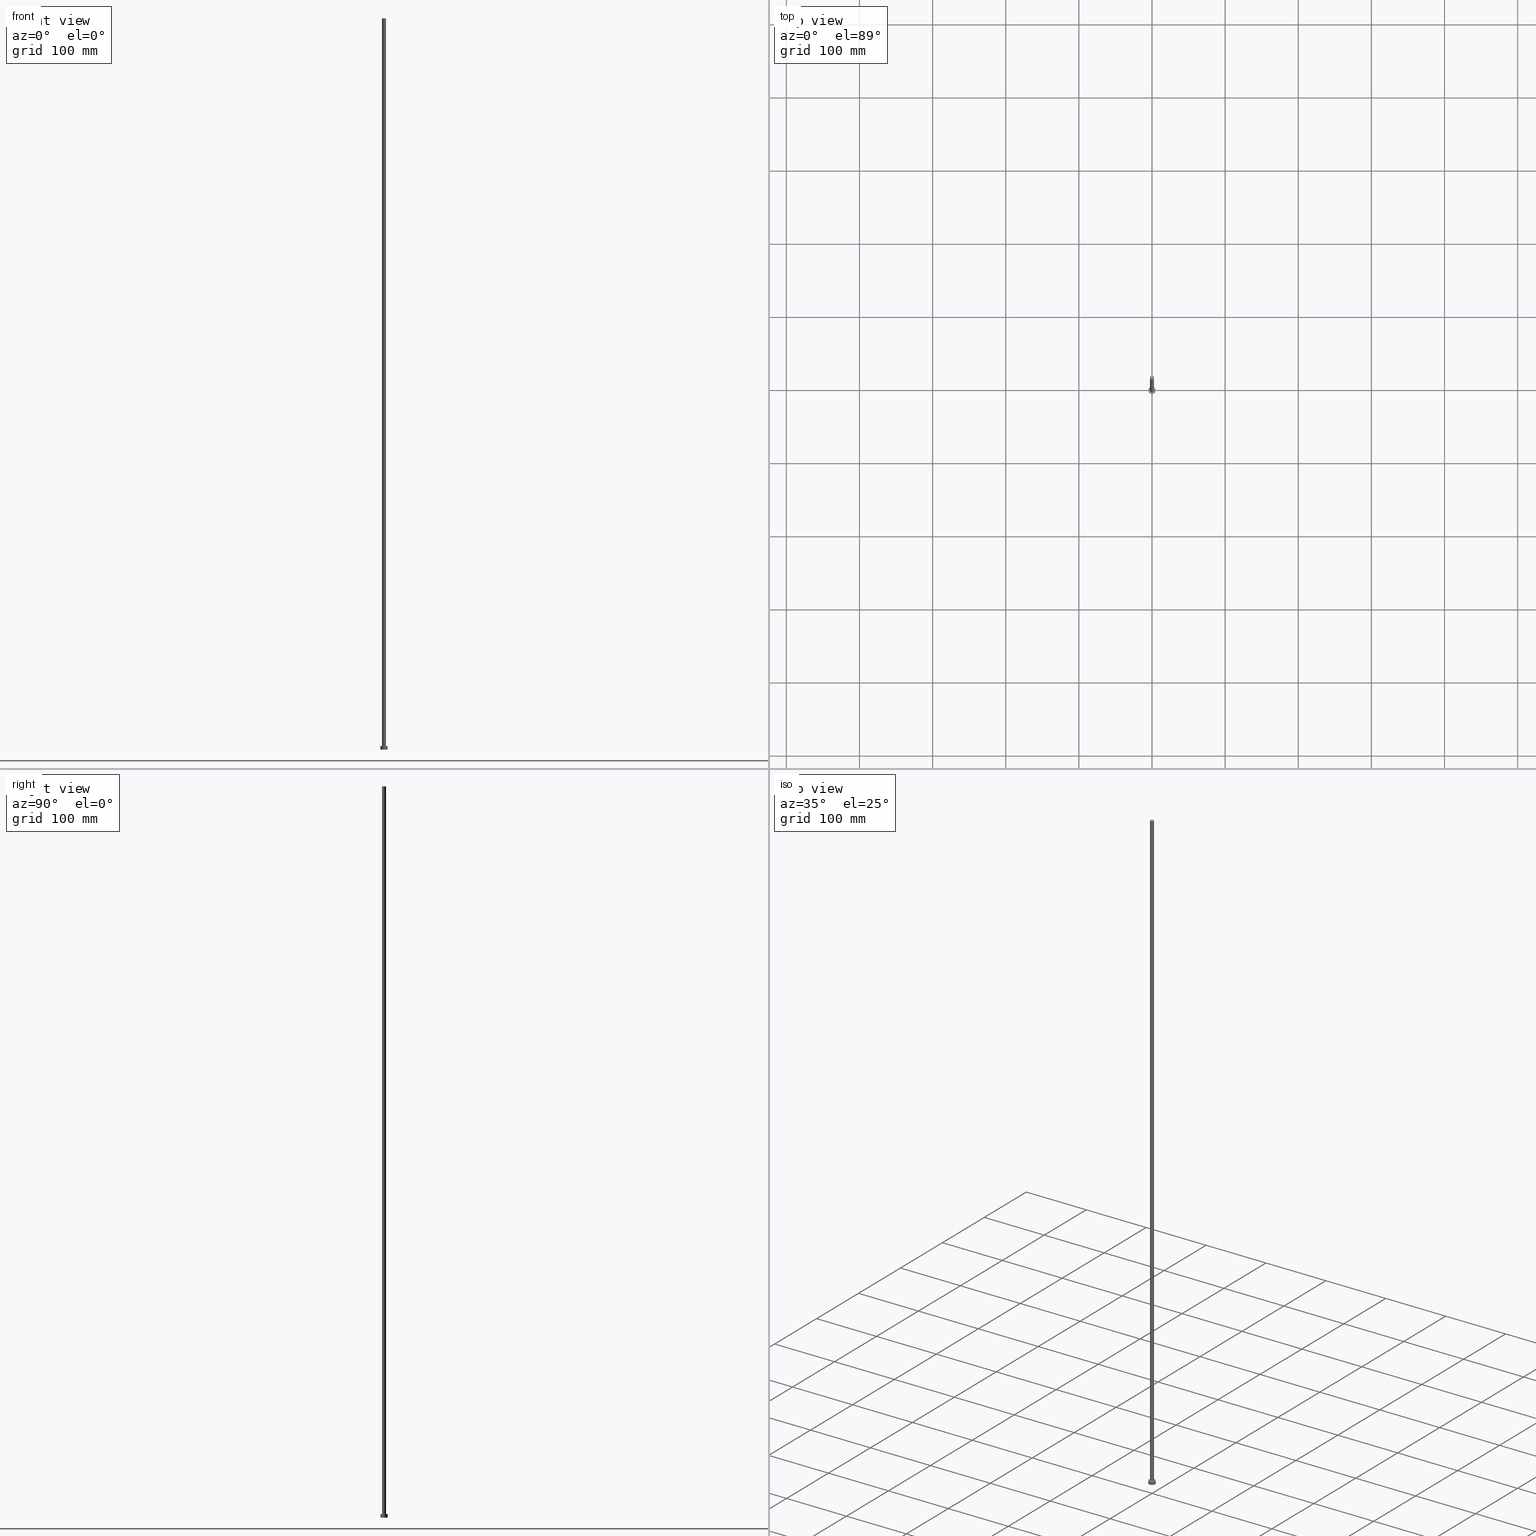
[diagram: canonical four-view strip — front | top / right | iso, engineering-drawing reading convention]
A machine part, canonical four-view strip (front | top / right | iso — engineering-drawing reading convention). The complete STEP part file that produces these views, byte-faithful:
ISO-10303-21;
HEADER;
FILE_DESCRIPTION (( 'STEP AP203' ),
    '1' );
FILE_NAME ('f2f4.STEP',
    '2023-02-13T15:46:04',
    ( '' ),
    ( '' ),
    'SwSTEP 2.0',
    'SolidWorks 2019',
    '' );
FILE_SCHEMA (( 'CONFIG_CONTROL_DESIGN' ));
ENDSEC;

DATA;
#1 = ORIENTED_EDGE ( 'NONE', *, *, #202, .F. ) ;
#2 = FACE_OUTER_BOUND ( 'NONE', #23, .T. ) ;
#3 = AXIS2_PLACEMENT_3D ( 'NONE', #111, #194, #216 ) ;
#4 = CC_DESIGN_PERSON_AND_ORGANIZATION_ASSIGNMENT ( #94, #206, ( #47 ) ) ;
#5 = VERTEX_POINT ( 'NONE', #255 ) ;
#6 = PLANE ( 'NONE',  #195 ) ;
#7 = ORIENTED_EDGE ( 'NONE', *, *, #248, .F. ) ;
#8 = CALENDAR_DATE ( 2023, 13, 2 ) ;
#9 = VECTOR ( 'NONE', #139, 1000.000000000000000 ) ;
#10 =( LENGTH_UNIT ( ) NAMED_UNIT ( * ) SI_UNIT ( .MILLI., .METRE. ) );
#11 = ORIENTED_EDGE ( 'NONE', *, *, #248, .T. ) ;
#12 = DIRECTION ( 'NONE',  ( 1.000000000000000000, 0.000000000000000000, 0.000000000000000000 ) ) ;
#13 = ORIENTED_EDGE ( 'NONE', *, *, #87, .F. ) ;
#14 = DATE_AND_TIME ( #124, #182 ) ;
#15 = ORIENTED_EDGE ( 'NONE', *, *, #162, .T. ) ;
#16 = CIRCLE ( 'NONE', #43, 5.000000000000000000 ) ;
#17 = CARTESIAN_POINT ( 'NONE',  ( 0.000000000000000000, 0.000000000000000000, 1000.000000000000000 ) ) ;
#18 = DIRECTION ( 'NONE',  ( 0.000000000000000000, 0.000000000000000000, 1.000000000000000000 ) ) ;
#19 = DIRECTION ( 'NONE',  ( 1.000000000000000000, 0.000000000000000000, 0.000000000000000000 ) ) ;
#20 = PERSON_AND_ORGANIZATION_ROLE ( 'classification_officer' ) ;
#21 = ADVANCED_FACE ( 'NONE', ( #155 ), #252, .T. ) ;
#22 = CC_DESIGN_APPROVAL ( #121, ( #104 ) ) ;
#23 = EDGE_LOOP ( 'NONE', ( #209, #49, #99, #13 ) ) ;
#24 = CARTESIAN_POINT ( 'NONE',  ( 0.000000000000000000, 0.000000000000000000, 5.000000000000000000 ) ) ;
#25 = PRODUCT_RELATED_PRODUCT_CATEGORY ( 'detail', '', ( #241 ) ) ;
#26 = CC_DESIGN_PERSON_AND_ORGANIZATION_ASSIGNMENT ( #75, #158, ( #104 ) ) ;
#27 = UNCERTAINTY_MEASURE_WITH_UNIT (LENGTH_MEASURE( 1.000000000000000082E-05 ), #10, 'distance_accuracy_value', 'NONE');
#28 = CIRCLE ( 'NONE', #220, 2.750000000000000000 ) ;
#29 = APPROVAL_DATE_TIME ( #14, #183 ) ;
#30 = FACE_OUTER_BOUND ( 'NONE', #207, .T. ) ;
#31 = CYLINDRICAL_SURFACE ( 'NONE', #203, 5.000000000000000000 ) ;
#32 = EDGE_LOOP ( 'NONE', ( #185, #93, #57, #251 ) ) ;
#33 = AXIS2_PLACEMENT_3D ( 'NONE', #148, #186, #50 ) ;
#34 = PERSON_AND_ORGANIZATION_ROLE ( 'design_owner' ) ;
#35 = ORIENTED_EDGE ( 'NONE', *, *, #133, .T. ) ;
#36 = APPLICATION_CONTEXT ( 'configuration controlled 3d designs of mechanical parts and assemblies' ) ;
#37 = AXIS2_PLACEMENT_3D ( 'NONE', #17, #237, #61 ) ;
#38 = CARTESIAN_POINT ( 'NONE',  ( 2.750000000000000000, 3.367778697655220519E-16, 1000.000000000000000 ) ) ;
#39 = LINE ( 'NONE', #238, #9 ) ;
#40 = ORIENTED_EDGE ( 'NONE', *, *, #62, .T. ) ;
#41 = DIRECTION ( 'NONE',  ( 1.000000000000000000, 0.000000000000000000, 0.000000000000000000 ) ) ;
#42 = COORDINATED_UNIVERSAL_TIME_OFFSET ( 1, 0, .AHEAD. ) ;
#43 = AXIS2_PLACEMENT_3D ( 'NONE', #24, #102, #84 ) ;
#44 = EDGE_CURVE ( 'NONE', #80, #5, #143, .T. ) ;
#45 = FACE_BOUND ( 'NONE', #196, .T. ) ;
#46 = AXIS2_PLACEMENT_3D ( 'NONE', #134, #236, #179 ) ;
#47 = PRODUCT_DEFINITION ( 'NEZN�M�', '', #104, #123 ) ;
#48 = LOCAL_TIME ( 16, 46, 4.000000000000000000, #42 ) ;
#49 = ORIENTED_EDGE ( 'NONE', *, *, #229, .T. ) ;
#50 = DIRECTION ( 'NONE',  ( 1.000000000000000000, 0.000000000000000000, 0.000000000000000000 ) ) ;
#51 = APPROVAL_ROLE ( '' ) ;
#52 = CC_DESIGN_SECURITY_CLASSIFICATION ( #254, ( #104 ) ) ;
#53 = MECHANICAL_CONTEXT ( 'NONE', #204, 'mechanical' ) ;
#54 = ADVANCED_FACE ( 'NONE', ( #97 ), #114, .T. ) ;
#55 = CARTESIAN_POINT ( 'NONE',  ( 0.000000000000000000, 0.000000000000000000, 0.000000000000000000 ) ) ;
#56 = AXIS2_PLACEMENT_3D ( 'NONE', #59, #18, #117 ) ;
#57 = ORIENTED_EDGE ( 'NONE', *, *, #103, .T. ) ;
#58 = APPROVAL_PERSON_ORGANIZATION ( #108, #183, #193 ) ;
#59 = CARTESIAN_POINT ( 'NONE',  ( 0.000000000000000000, 0.000000000000000000, 5.000000000000000000 ) ) ;
#60 = PERSON_AND_ORGANIZATION ( #69, #224 ) ;
#61 = DIRECTION ( 'NONE',  ( -1.000000000000000000, 0.000000000000000000, 0.000000000000000000 ) ) ;
#62 = EDGE_CURVE ( 'NONE', #246, #101, #164, .T. ) ;
#63 = EDGE_LOOP ( 'NONE', ( #145, #126 ) ) ;
#64 = AXIS2_PLACEMENT_3D ( 'NONE', #165, #70, #210 ) ;
#65 = CYLINDRICAL_SURFACE ( 'NONE', #153, 5.000000000000000000 ) ;
#66 = AXIS2_PLACEMENT_3D ( 'NONE', #55, #130, #154 ) ;
#67 = EDGE_CURVE ( 'NONE', #230, #109, #234, .T. ) ;
#68 = PRODUCT_DEFINITION_SHAPE ( 'NONE', 'NONE',  #47 ) ;
#69 = PERSON ( 'NEUR�EN�', 'NEUR�EN�', 'NEUR�EN�', ('NEUR�EN�'), ('NEUR�EN�'), ('NEUR�EN�') ) ;
#70 = DIRECTION ( 'NONE',  ( 0.000000000000000000, 0.000000000000000000, 1.000000000000000000 ) ) ;
#71 = PERSON_AND_ORGANIZATION ( #69, #224 ) ;
#72 = EDGE_LOOP ( 'NONE', ( #15, #190 ) ) ;
#73 =( NAMED_UNIT ( * ) PLANE_ANGLE_UNIT ( ) SI_UNIT ( $, .RADIAN. ) );
#74 = DIRECTION ( 'NONE',  ( -0.000000000000000000, -0.000000000000000000, -1.000000000000000000 ) ) ;
#75 = PERSON_AND_ORGANIZATION ( #69, #224 ) ;
#76 = CARTESIAN_POINT ( 'NONE',  ( -5.000000000000000000, 0.000000000000000000, 5.000000000000000000 ) ) ;
#77 = DATE_AND_TIME ( #215, #48 ) ;
#78 = EDGE_LOOP ( 'NONE', ( #212, #151, #11, #113 ) ) ;
#79 = SHAPE_DEFINITION_REPRESENTATION ( #68, #163 ) ;
#80 = VERTEX_POINT ( 'NONE', #157 ) ;
#81 = APPROVAL_DATE_TIME ( #174, #121 ) ;
#82 = DIRECTION ( 'NONE',  ( 0.000000000000000000, 0.000000000000000000, 1.000000000000000000 ) ) ;
#83 = COORDINATED_UNIVERSAL_TIME_OFFSET ( 1, 0, .AHEAD. ) ;
#84 = DIRECTION ( 'NONE',  ( 1.000000000000000000, 0.000000000000000000, 0.000000000000000000 ) ) ;
#85 = CIRCLE ( 'NONE', #170, 2.750000000000000000 ) ;
#86 = CC_DESIGN_APPROVAL ( #183, ( #47 ) ) ;
#87 = EDGE_CURVE ( 'NONE', #101, #109, #39, .T. ) ;
#88 = ORIENTED_EDGE ( 'NONE', *, *, #44, .F. ) ;
#89 = DATE_TIME_ROLE ( 'creation_date' ) ;
#90 = ADVANCED_FACE ( 'NONE', ( #219 ), #172, .T. ) ;
#91 = VERTEX_POINT ( 'NONE', #96 ) ;
#92 = DIRECTION ( 'NONE',  ( 0.000000000000000000, 0.000000000000000000, 1.000000000000000000 ) ) ;
#93 = ORIENTED_EDGE ( 'NONE', *, *, #162, .F. ) ;
#94 = PERSON_AND_ORGANIZATION ( #69, #224 ) ;
#95 = AXIS2_PLACEMENT_3D ( 'NONE', #244, #247, #12 ) ;
#96 = CARTESIAN_POINT ( 'NONE',  ( 2.750000000000000000, 3.367778697655220519E-16, 1000.000000000000000 ) ) ;
#97 = FACE_OUTER_BOUND ( 'NONE', #72, .T. ) ;
#98 = DIRECTION ( 'NONE',  ( 0.000000000000000000, 0.000000000000000000, 1.000000000000000000 ) ) ;
#99 = ORIENTED_EDGE ( 'NONE', *, *, #67, .T. ) ;
#100 = DATE_AND_TIME ( #152, #140 ) ;
#101 = VERTEX_POINT ( 'NONE', #76 ) ;
#102 = DIRECTION ( 'NONE',  ( 0.000000000000000000, 0.000000000000000000, 1.000000000000000000 ) ) ;
#103 = EDGE_CURVE ( 'NONE', #192, #80, #171, .T. ) ;
#104 = PRODUCT_DEFINITION_FORMATION_WITH_SPECIFIED_SOURCE ( 'LIBOVOLN�', '', #241, .NOT_KNOWN. ) ;
#105 = DIRECTION ( 'NONE',  ( 1.000000000000000000, 0.000000000000000000, -0.000000000000000000 ) ) ;
#106 = APPLICATION_PROTOCOL_DEFINITION ( 'international standard', 'config_control_design', 1994, #204 ) ;
#107 = CARTESIAN_POINT ( 'NONE',  ( 0.000000000000000000, 0.000000000000000000, 5.000000000000000000 ) ) ;
#108 = PERSON_AND_ORGANIZATION ( #69, #224 ) ;
#109 = VERTEX_POINT ( 'NONE', #233 ) ;
#110 = APPLICATION_PROTOCOL_DEFINITION ( 'international standard', 'config_control_design', 1994, #36 ) ;
#111 = CARTESIAN_POINT ( 'NONE',  ( 0.000000000000000000, 0.000000000000000000, 1000.000000000000000 ) ) ;
#112 = CC_DESIGN_APPROVAL ( #116, ( #254 ) ) ;
#113 = ORIENTED_EDGE ( 'NONE', *, *, #103, .F. ) ;
#114 = PLANE ( 'NONE',  #46 ) ;
#115 = CARTESIAN_POINT ( 'NONE',  ( 0.000000000000000000, 0.000000000000000000, 1000.000000000000000 ) ) ;
#116 = APPROVAL ( #177, 'NEUR�EN�' ) ;
#117 = DIRECTION ( 'NONE',  ( 1.000000000000000000, 0.000000000000000000, 0.000000000000000000 ) ) ;
#118 = CIRCLE ( 'NONE', #66, 5.000000000000000000 ) ;
#119 = CARTESIAN_POINT ( 'NONE',  ( -2.750000000000000000, 0.000000000000000000, 1000.000000000000000 ) ) ;
#120 = AXIS2_PLACEMENT_3D ( 'NONE', #135, #82, #149 ) ;
#121 = APPROVAL ( #144, 'NEUR�EN�' ) ;
#122 = EDGE_CURVE ( 'NONE', #91, #192, #28, .T. ) ;
#123 = DESIGN_CONTEXT ( 'detailed design', #36, 'design' ) ;
#124 = CALENDAR_DATE ( 2023, 13, 2 ) ;
#125 = DATE_AND_TIME ( #8, #128 ) ;
#126 = ORIENTED_EDGE ( 'NONE', *, *, #67, .F. ) ;
#127 =( NAMED_UNIT ( * ) SI_UNIT ( $, .STERADIAN. ) SOLID_ANGLE_UNIT ( ) );
#128 = LOCAL_TIME ( 16, 46, 4.000000000000000000, #169 ) ;
#129 = CARTESIAN_POINT ( 'NONE',  ( 0.000000000000000000, 0.000000000000000000, 0.000000000000000000 ) ) ;
#130 = DIRECTION ( 'NONE',  ( 0.000000000000000000, 0.000000000000000000, 1.000000000000000000 ) ) ;
#131 = COORDINATED_UNIVERSAL_TIME_OFFSET ( 1, 0, .AHEAD. ) ;
#132 = CC_DESIGN_DATE_AND_TIME_ASSIGNMENT ( #125, #89, ( #47 ) ) ;
#133 = EDGE_CURVE ( 'NONE', #109, #230, #118, .T. ) ;
#134 = CARTESIAN_POINT ( 'NONE',  ( 0.000000000000000000, 0.000000000000000000, 1000.000000000000000 ) ) ;
#135 = CARTESIAN_POINT ( 'NONE',  ( 0.000000000000000000, 0.000000000000000000, 0.000000000000000000 ) ) ;
#136 = DATE_TIME_ROLE ( 'classification_date' ) ;
#137 = CARTESIAN_POINT ( 'NONE',  ( 0.000000000000000000, 0.000000000000000000, 5.000000000000000000 ) ) ;
#138 = CC_DESIGN_PERSON_AND_ORGANIZATION_ASSIGNMENT ( #208, #34, ( #241 ) ) ;
#139 = DIRECTION ( 'NONE',  ( -0.000000000000000000, -0.000000000000000000, -1.000000000000000000 ) ) ;
#140 = LOCAL_TIME ( 16, 46, 4.000000000000000000, #131 ) ;
#141 = PLANE ( 'NONE',  #64 ) ;
#142 = LOCAL_TIME ( 16, 46, 4.000000000000000000, #83 ) ;
#143 = CIRCLE ( 'NONE', #214, 2.750000000000000000 ) ;
#144 = APPROVAL_STATUS ( 'not_yet_approved' ) ;
#145 = ORIENTED_EDGE ( 'NONE', *, *, #133, .F. ) ;
#146 = DIRECTION ( 'NONE',  ( -1.000000000000000000, 0.000000000000000000, 0.000000000000000000 ) ) ;
#147 = VECTOR ( 'NONE', #217, 1000.000000000000000 ) ;
#148 = CARTESIAN_POINT ( 'NONE',  ( 0.000000000000000000, 0.000000000000000000, 0.000000000000000000 ) ) ;
#149 = DIRECTION ( 'NONE',  ( 1.000000000000000000, 0.000000000000000000, 0.000000000000000000 ) ) ;
#150 = EDGE_CURVE ( 'NONE', #91, #5, #213, .T. ) ;
#151 = ORIENTED_EDGE ( 'NONE', *, *, #150, .T. ) ;
#152 = CALENDAR_DATE ( 2023, 13, 2 ) ;
#153 = AXIS2_PLACEMENT_3D ( 'NONE', #159, #181, #201 ) ;
#154 = DIRECTION ( 'NONE',  ( 1.000000000000000000, 0.000000000000000000, 0.000000000000000000 ) ) ;
#155 = FACE_OUTER_BOUND ( 'NONE', #78, .T. ) ;
#156 = APPROVAL_DATE_TIME ( #77, #116 ) ;
#157 = CARTESIAN_POINT ( 'NONE',  ( -2.750000000000000000, 0.000000000000000000, 5.000000000000000000 ) ) ;
#158 = PERSON_AND_ORGANIZATION_ROLE ( 'creator' ) ;
#159 = CARTESIAN_POINT ( 'NONE',  ( 0.000000000000000000, 0.000000000000000000, 5.000000000000000000 ) ) ;
#160 = APPROVAL_PERSON_ORGANIZATION ( #239, #116, #199 ) ;
#161 = CC_DESIGN_DATE_AND_TIME_ASSIGNMENT ( #100, #136, ( #254 ) ) ;
#162 = EDGE_CURVE ( 'NONE', #192, #91, #85, .T. ) ;
#163 = ADVANCED_BREP_SHAPE_REPRESENTATION ( 'f2f4', ( #242, #33 ), #184 ) ;
#164 = CIRCLE ( 'NONE', #56, 5.000000000000000000 ) ;
#165 = CARTESIAN_POINT ( 'NONE',  ( 0.000000000000000000, 0.000000000000000000, 5.000000000000000000 ) ) ;
#166 = ORIENTED_EDGE ( 'NONE', *, *, #229, .F. ) ;
#167 = DIRECTION ( 'NONE',  ( -0.000000000000000000, -0.000000000000000000, -1.000000000000000000 ) ) ;
#168 = ORIENTED_EDGE ( 'NONE', *, *, #202, .T. ) ;
#169 = COORDINATED_UNIVERSAL_TIME_OFFSET ( 1, 0, .AHEAD. ) ;
#170 = AXIS2_PLACEMENT_3D ( 'NONE', #115, #198, #19 ) ;
#171 = LINE ( 'NONE', #250, #228 ) ;
#172 = CYLINDRICAL_SURFACE ( 'NONE', #3, 2.750000000000000000 ) ;
#173 = DIRECTION ( 'NONE',  ( 1.000000000000000000, 0.000000000000000000, 0.000000000000000000 ) ) ;
#174 = DATE_AND_TIME ( #180, #142 ) ;
#175 = VECTOR ( 'NONE', #167, 1000.000000000000000 ) ;
#176 = EDGE_LOOP ( 'NONE', ( #168, #40 ) ) ;
#177 = APPROVAL_STATUS ( 'not_yet_approved' ) ;
#178 = ADVANCED_FACE ( 'NONE', ( #2 ), #65, .T. ) ;
#179 = DIRECTION ( 'NONE',  ( 1.000000000000000000, 0.000000000000000000, -0.000000000000000000 ) ) ;
#180 = CALENDAR_DATE ( 2023, 13, 2 ) ;
#181 = DIRECTION ( 'NONE',  ( -0.000000000000000000, -0.000000000000000000, -1.000000000000000000 ) ) ;
#182 = LOCAL_TIME ( 16, 46, 4.000000000000000000, #249 ) ;
#183 = APPROVAL ( #188, 'NEUR�EN�' ) ;
#184 =( GEOMETRIC_REPRESENTATION_CONTEXT ( 3 ) GLOBAL_UNCERTAINTY_ASSIGNED_CONTEXT ( ( #27 ) ) GLOBAL_UNIT_ASSIGNED_CONTEXT ( ( #10, #73, #127 ) ) REPRESENTATION_CONTEXT ( 'NONE', 'WORKASPACE' ) );
#185 = ORIENTED_EDGE ( 'NONE', *, *, #150, .F. ) ;
#186 = DIRECTION ( 'NONE',  ( 0.000000000000000000, 0.000000000000000000, 1.000000000000000000 ) ) ;
#187 = CC_DESIGN_PERSON_AND_ORGANIZATION_ASSIGNMENT ( #60, #253, ( #104 ) ) ;
#188 = APPROVAL_STATUS ( 'not_yet_approved' ) ;
#189 = CARTESIAN_POINT ( 'NONE',  ( 5.000000000000000000, 6.123233995736766282E-16, 5.000000000000000000 ) ) ;
#190 = ORIENTED_EDGE ( 'NONE', *, *, #122, .T. ) ;
#191 = FACE_OUTER_BOUND ( 'NONE', #63, .T. ) ;
#192 = VERTEX_POINT ( 'NONE', #119 ) ;
#193 = APPROVAL_ROLE ( '' ) ;
#194 = DIRECTION ( 'NONE',  ( -0.000000000000000000, -0.000000000000000000, -1.000000000000000000 ) ) ;
#195 = AXIS2_PLACEMENT_3D ( 'NONE', #129, #92, #105 ) ;
#196 = EDGE_LOOP ( 'NONE', ( #88, #7 ) ) ;
#197 = CARTESIAN_POINT ( 'NONE',  ( 0.000000000000000000, 0.000000000000000000, 1000.000000000000000 ) ) ;
#198 = DIRECTION ( 'NONE',  ( 0.000000000000000000, 0.000000000000000000, 1.000000000000000000 ) ) ;
#199 = APPROVAL_ROLE ( '' ) ;
#200 = PERSON_AND_ORGANIZATION ( #69, #224 ) ;
#201 = DIRECTION ( 'NONE',  ( -1.000000000000000000, 0.000000000000000000, 0.000000000000000000 ) ) ;
#202 = EDGE_CURVE ( 'NONE', #101, #246, #16, .T. ) ;
#203 = AXIS2_PLACEMENT_3D ( 'NONE', #107, #225, #146 ) ;
#204 = APPLICATION_CONTEXT ( 'configuration controlled 3d designs of mechanical parts and assemblies' ) ;
#205 = CIRCLE ( 'NONE', #95, 2.750000000000000000 ) ;
#206 = PERSON_AND_ORGANIZATION_ROLE ( 'creator' ) ;
#207 = EDGE_LOOP ( 'NONE', ( #166, #1, #243, #35 ) ) ;
#208 = PERSON_AND_ORGANIZATION ( #69, #224 ) ;
#209 = ORIENTED_EDGE ( 'NONE', *, *, #62, .F. ) ;
#210 = DIRECTION ( 'NONE',  ( 1.000000000000000000, 0.000000000000000000, -0.000000000000000000 ) ) ;
#211 = ADVANCED_FACE ( 'NONE', ( #45, #240 ), #141, .T. ) ;
#212 = ORIENTED_EDGE ( 'NONE', *, *, #122, .F. ) ;
#213 = LINE ( 'NONE', #38, #147 ) ;
#214 = AXIS2_PLACEMENT_3D ( 'NONE', #137, #218, #41 ) ;
#215 = CALENDAR_DATE ( 2023, 13, 2 ) ;
#216 = DIRECTION ( 'NONE',  ( -1.000000000000000000, 0.000000000000000000, 0.000000000000000000 ) ) ;
#217 = DIRECTION ( 'NONE',  ( -0.000000000000000000, -0.000000000000000000, -1.000000000000000000 ) ) ;
#218 = DIRECTION ( 'NONE',  ( 0.000000000000000000, 0.000000000000000000, 1.000000000000000000 ) ) ;
#219 = FACE_OUTER_BOUND ( 'NONE', #32, .T. ) ;
#220 = AXIS2_PLACEMENT_3D ( 'NONE', #197, #98, #173 ) ;
#221 = CC_DESIGN_PERSON_AND_ORGANIZATION_ASSIGNMENT ( #200, #20, ( #254 ) ) ;
#222 = ADVANCED_FACE ( 'NONE', ( #30 ), #31, .T. ) ;
#223 = CLOSED_SHELL ( 'NONE', ( #21, #178, #222, #211, #232, #90, #54 ) ) ;
#224 = ORGANIZATION ( 'NEUR�EN�', 'NEUR�EN�', '' ) ;
#225 = DIRECTION ( 'NONE',  ( -0.000000000000000000, -0.000000000000000000, -1.000000000000000000 ) ) ;
#226 = CARTESIAN_POINT ( 'NONE',  ( 5.000000000000000000, 6.123233995736766282E-16, 5.000000000000000000 ) ) ;
#227 = CARTESIAN_POINT ( 'NONE',  ( 5.000000000000000000, 6.123233995736766282E-16, 0.000000000000000000 ) ) ;
#228 = VECTOR ( 'NONE', #74, 1000.000000000000000 ) ;
#229 = EDGE_CURVE ( 'NONE', #246, #230, #245, .T. ) ;
#230 = VERTEX_POINT ( 'NONE', #227 ) ;
#231 = SECURITY_CLASSIFICATION_LEVEL ( 'unclassified' ) ;
#232 = ADVANCED_FACE ( 'NONE', ( #191 ), #6, .F. ) ;
#233 = CARTESIAN_POINT ( 'NONE',  ( -5.000000000000000000, 0.000000000000000000, 0.000000000000000000 ) ) ;
#234 = CIRCLE ( 'NONE', #120, 5.000000000000000000 ) ;
#235 = APPROVAL_PERSON_ORGANIZATION ( #71, #121, #51 ) ;
#236 = DIRECTION ( 'NONE',  ( 0.000000000000000000, 0.000000000000000000, 1.000000000000000000 ) ) ;
#237 = DIRECTION ( 'NONE',  ( -0.000000000000000000, -0.000000000000000000, -1.000000000000000000 ) ) ;
#238 = CARTESIAN_POINT ( 'NONE',  ( -5.000000000000000000, 0.000000000000000000, 5.000000000000000000 ) ) ;
#239 = PERSON_AND_ORGANIZATION ( #69, #224 ) ;
#240 = FACE_OUTER_BOUND ( 'NONE', #176, .T. ) ;
#241 = PRODUCT ( 'f2f4', 'f2f4', '', ( #53 ) ) ;
#242 = MANIFOLD_SOLID_BREP ( 'P�idat vysunut�m3', #223 ) ;
#243 = ORIENTED_EDGE ( 'NONE', *, *, #87, .T. ) ;
#244 = CARTESIAN_POINT ( 'NONE',  ( 0.000000000000000000, 0.000000000000000000, 5.000000000000000000 ) ) ;
#245 = LINE ( 'NONE', #189, #175 ) ;
#246 = VERTEX_POINT ( 'NONE', #226 ) ;
#247 = DIRECTION ( 'NONE',  ( 0.000000000000000000, 0.000000000000000000, 1.000000000000000000 ) ) ;
#248 = EDGE_CURVE ( 'NONE', #5, #80, #205, .T. ) ;
#249 = COORDINATED_UNIVERSAL_TIME_OFFSET ( 1, 0, .AHEAD. ) ;
#250 = CARTESIAN_POINT ( 'NONE',  ( -2.750000000000000000, 0.000000000000000000, 1000.000000000000000 ) ) ;
#251 = ORIENTED_EDGE ( 'NONE', *, *, #44, .T. ) ;
#252 = CYLINDRICAL_SURFACE ( 'NONE', #37, 2.750000000000000000 ) ;
#253 = PERSON_AND_ORGANIZATION_ROLE ( 'design_supplier' ) ;
#254 = SECURITY_CLASSIFICATION ( '', '', #231 ) ;
#255 = CARTESIAN_POINT ( 'NONE',  ( 2.750000000000000000, 3.367778697655220519E-16, 5.000000000000000000 ) ) ;
ENDSEC;
END-ISO-10303-21;
